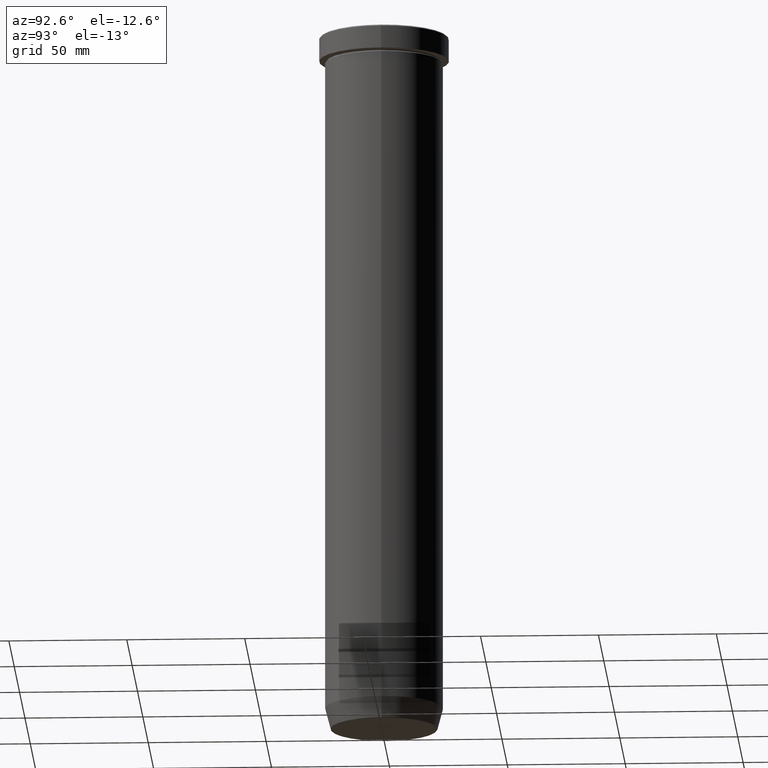
[diagram: clean part render]
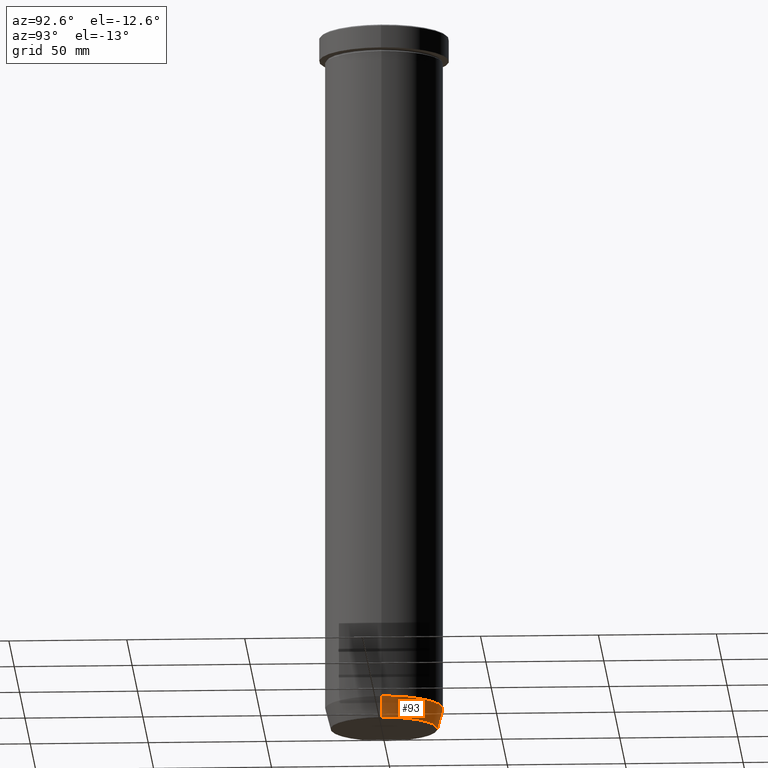
[diagram: same view with one face highlighted and labeled with its STEP entity id]
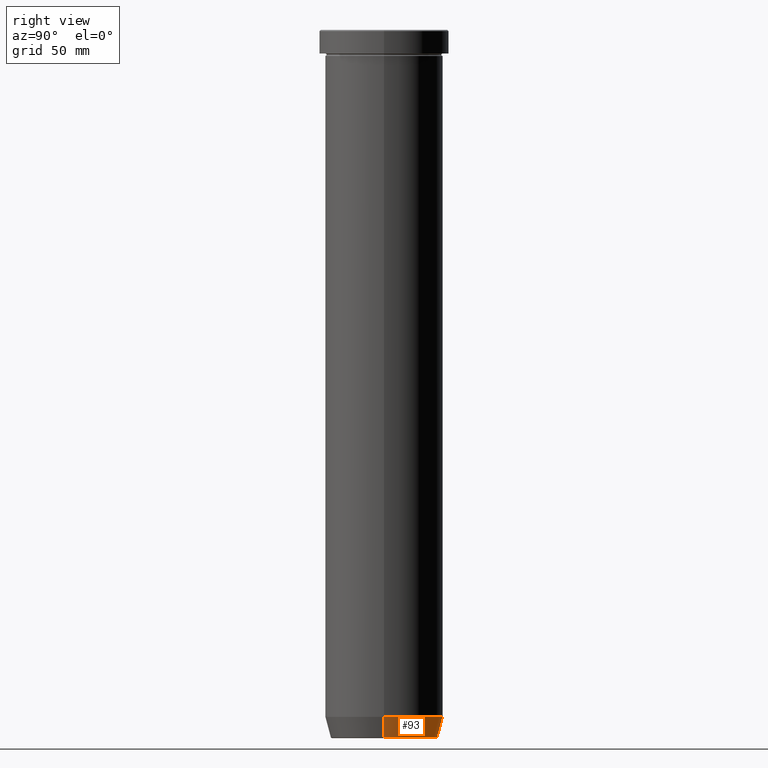
[diagram: same view with one face highlighted and labeled with its STEP entity id]
A machine part, auxiliary view. The second image highlights one B-rep face of the part: STEP entity #93.
A second angle (right view) of the same face is appended — the face is thin or edge-on in the first view.
In plain terms, the highlighted conical surface has half-angle 15 deg.
Its self-contained STEP definition (entity closure, byte-faithful):
#5 = CARTESIAN_POINT ( 'NONE',  ( 22.58845726811988897, 0.000000000000000000, -300.0000000000000000 ) ) ;
#8 = CARTESIAN_POINT ( 'NONE',  ( 0.000000000000000000, 0.000000000000000000, -300.0000000000000000 ) ) ;
#10 = CARTESIAN_POINT ( 'NONE',  ( -25.00000000000000000, 3.061616997868383043E-15, -291.0000000000000000 ) ) ;
#17 = CIRCLE ( 'NONE', #319, 25.00000000000000000 ) ;
#25 = CIRCLE ( 'NONE', #51, 22.68775668727494477 ) ;
#38 = EDGE_CURVE ( 'NONE', #432, #240, #17, .T. ) ;
#46 = ORIENTED_EDGE ( 'NONE', *, *, #333, .T. ) ;
#51 = AXIS2_PLACEMENT_3D ( 'NONE', #495, #400, #454 ) ;
#93 = ADVANCED_FACE ( 'NONE', ( #258 ), #352, .T. ) ;
#102 = CARTESIAN_POINT ( 'NONE',  ( 0.000000000000000000, 0.000000000000000000, -291.0000000000000000 ) ) ;
#119 = CARTESIAN_POINT ( 'NONE',  ( -22.58845726811988897, 2.766288189107978730E-15, -300.0000000000000000 ) ) ;
#133 = VERTEX_POINT ( 'NONE', #544 ) ;
#140 = EDGE_LOOP ( 'NONE', ( #567, #46, #303, #575 ) ) ;
#150 = AXIS2_PLACEMENT_3D ( 'NONE', #8, #439, #203 ) ;
#181 = LINE ( 'NONE', #119, #395 ) ;
#203 = DIRECTION ( 'NONE',  ( 1.000000000000000000, 0.000000000000000000, 0.000000000000000000 ) ) ;
#218 = CARTESIAN_POINT ( 'NONE',  ( -22.68775668727494477, 2.920032929279452187E-15, -299.6294095225512137 ) ) ;
#222 = EDGE_CURVE ( 'NONE', #133, #432, #327, .T. ) ;
#240 = VERTEX_POINT ( 'NONE', #10 ) ;
#258 = FACE_OUTER_BOUND ( 'NONE', #140, .T. ) ;
#290 = EDGE_CURVE ( 'NONE', #133, #317, #25, .T. ) ;
#292 = VECTOR ( 'NONE', #557, 1000.000000000000114 ) ;
#296 = DIRECTION ( 'NONE',  ( -0.000000000000000000, -0.000000000000000000, 1.000000000000000000 ) ) ;
#303 = ORIENTED_EDGE ( 'NONE', *, *, #38, .F. ) ;
#317 = VERTEX_POINT ( 'NONE', #218 ) ;
#319 = AXIS2_PLACEMENT_3D ( 'NONE', #102, #296, #576 ) ;
#327 = LINE ( 'NONE', #5, #292 ) ;
#333 = EDGE_CURVE ( 'NONE', #317, #240, #181, .T. ) ;
#352 = CONICAL_SURFACE ( 'NONE', #150, 22.58845726811988897, 0.2617993877991499074 ) ;
#395 = VECTOR ( 'NONE', #448, 1000.000000000000114 ) ;
#400 = DIRECTION ( 'NONE',  ( -0.000000000000000000, -0.000000000000000000, 1.000000000000000000 ) ) ;
#407 = CARTESIAN_POINT ( 'NONE',  ( 25.00000000000000000, 0.000000000000000000, -291.0000000000000000 ) ) ;
#432 = VERTEX_POINT ( 'NONE', #407 ) ;
#439 = DIRECTION ( 'NONE',  ( -0.000000000000000000, -0.000000000000000000, 1.000000000000000000 ) ) ;
#448 = DIRECTION ( 'NONE',  ( -0.2588190451025211836, 3.169619151431770488E-17, 0.9659258262890680902 ) ) ;
#454 = DIRECTION ( 'NONE',  ( -1.000000000000000000, 0.000000000000000000, 0.000000000000000000 ) ) ;
#495 = CARTESIAN_POINT ( 'NONE',  ( 0.000000000000000000, 0.000000000000000000, -299.6294095225512137 ) ) ;
#544 = CARTESIAN_POINT ( 'NONE',  ( 22.68775668727494477, 0.000000000000000000, -299.6294095225512137 ) ) ;
#557 = DIRECTION ( 'NONE',  ( 0.2588190451025211836, 0.000000000000000000, 0.9659258262890680902 ) ) ;
#567 = ORIENTED_EDGE ( 'NONE', *, *, #290, .T. ) ;
#575 = ORIENTED_EDGE ( 'NONE', *, *, #222, .F. ) ;
#576 = DIRECTION ( 'NONE',  ( 1.000000000000000000, 0.000000000000000000, 0.000000000000000000 ) ) ;